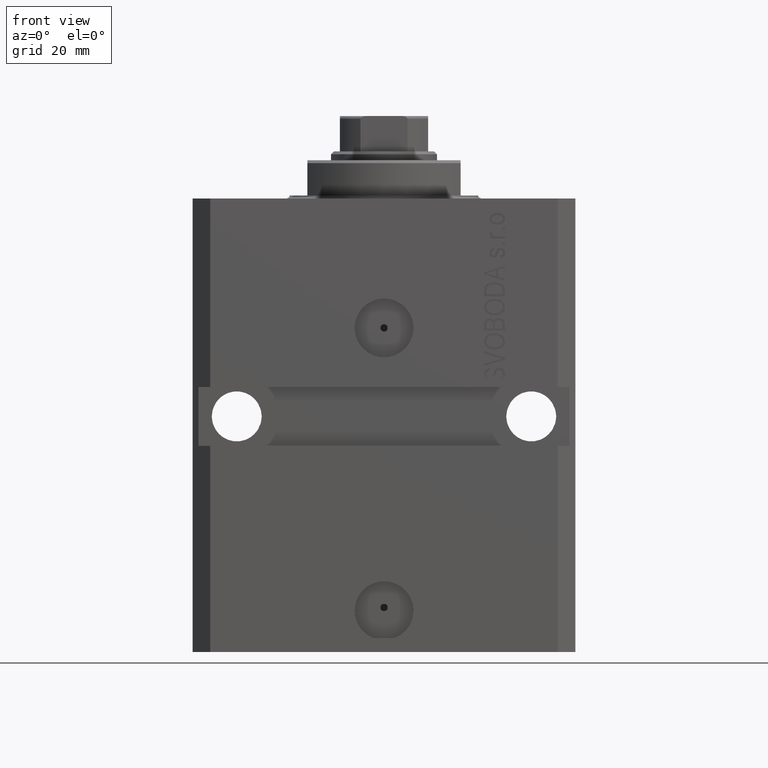
[diagram: clean part render]
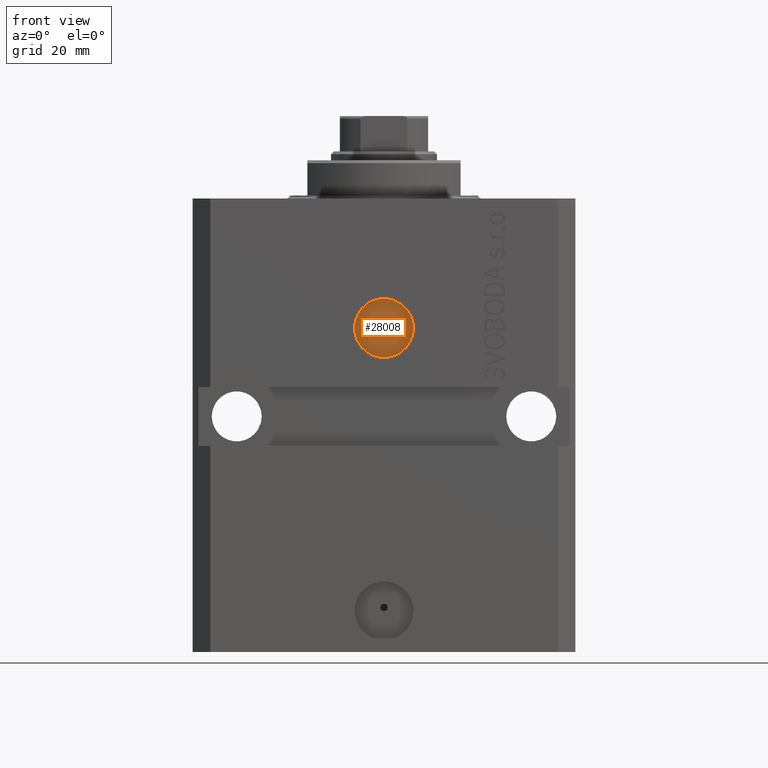
[diagram: same view with one face highlighted and labeled with its STEP entity id]
A machine part, front view. The second image highlights one B-rep face of the part: STEP entity #28008.
In plain terms, the highlighted planar face has unit normal (0, -1, 0).
Its self-contained STEP definition (entity closure, byte-faithful):
#2407 = CARTESIAN_POINT ( 'NONE',  ( 5.000000000000005329, -20.59999999999949694, -22.00000000000000000 ) ) ;
#3118 = CARTESIAN_POINT ( 'NONE',  ( 2.422732447805124080E-15, -20.59999999999949694, -22.00000000000000000 ) ) ;
#3271 = CIRCLE ( 'NONE', #17808, 5.000000000000002665 ) ;
#3811 = EDGE_LOOP ( 'NONE', ( #25388, #28164 ) ) ;
#4474 = VERTEX_POINT ( 'NONE', #19564 ) ;
#4702 = CARTESIAN_POINT ( 'NONE',  ( 2.422732447805124080E-15, -20.59999999999949694, -22.00000000000000000 ) ) ;
#7088 = DIRECTION ( 'NONE',  ( 1.000000000000000000, 1.176083712526788232E-16, 0.000000000000000000 ) ) ;
#7331 = FACE_BOUND ( 'NONE', #3811, .T. ) ;
#8726 = EDGE_LOOP ( 'NONE', ( #37330, #22894 ) ) ;
#8812 = CIRCLE ( 'NONE', #41928, 0.6250000000000002220 ) ;
#11511 = CARTESIAN_POINT ( 'NONE',  ( -0.6249999999999978906, -20.59999999999949694, -22.00000000000000000 ) ) ;
#16302 = VERTEX_POINT ( 'NONE', #41748 ) ;
#17808 = AXIS2_PLACEMENT_3D ( 'NONE', #3118, #18086, #43648 ) ;
#17864 = DIRECTION ( 'NONE',  ( 1.176083712526788232E-16, -1.000000000000000000, 0.000000000000000000 ) ) ;
#18086 = DIRECTION ( 'NONE',  ( 1.176083712526788232E-16, -1.000000000000000000, 0.000000000000000000 ) ) ;
#19564 = CARTESIAN_POINT ( 'NONE',  ( 0.6250000000000026645, -20.59999999999949694, -22.00000000000000000 ) ) ;
#20309 = VERTEX_POINT ( 'NONE', #2407 ) ;
#20983 = AXIS2_PLACEMENT_3D ( 'NONE', #25806, #17864, #43663 ) ;
#22052 = CARTESIAN_POINT ( 'NONE',  ( 2.422732447805124080E-15, -20.59999999999949694, -22.00000000000000000 ) ) ;
#22593 = DIRECTION ( 'NONE',  ( 1.000000000000000000, 0.000000000000000000, 0.000000000000000000 ) ) ;
#22894 = ORIENTED_EDGE ( 'NONE', *, *, #38348, .T. ) ;
#25388 = ORIENTED_EDGE ( 'NONE', *, *, #33059, .F. ) ;
#25417 = PLANE ( 'NONE',  #45013 ) ;
#25806 = CARTESIAN_POINT ( 'NONE',  ( 2.422732447805124080E-15, -20.59999999999949694, -22.00000000000000000 ) ) ;
#26885 = DIRECTION ( 'NONE',  ( 1.000000000000000000, 0.000000000000000000, 0.000000000000000000 ) ) ;
#27092 = AXIS2_PLACEMENT_3D ( 'NONE', #4702, #41833, #26885 ) ;
#27908 = CIRCLE ( 'NONE', #20983, 5.000000000000002665 ) ;
#28008 = ADVANCED_FACE ( 'NONE', ( #7331, #29257 ), #25417, .T. ) ;
#28164 = ORIENTED_EDGE ( 'NONE', *, *, #43574, .F. ) ;
#29257 = FACE_OUTER_BOUND ( 'NONE', #8726, .T. ) ;
#29309 = CARTESIAN_POINT ( 'NONE',  ( 2.422732447805124080E-15, -20.59999999999949694, -22.00000000000000000 ) ) ;
#33059 = EDGE_CURVE ( 'NONE', #4474, #45466, #45600, .T. ) ;
#35346 = EDGE_CURVE ( 'NONE', #20309, #16302, #3271, .T. ) ;
#37027 = DIRECTION ( 'NONE',  ( 1.176083712526788232E-16, -1.000000000000000000, 0.000000000000000000 ) ) ;
#37330 = ORIENTED_EDGE ( 'NONE', *, *, #35346, .T. ) ;
#38348 = EDGE_CURVE ( 'NONE', #16302, #20309, #27908, .T. ) ;
#40111 = DIRECTION ( 'NONE',  ( 1.176083712526788232E-16, -1.000000000000000000, 0.000000000000000000 ) ) ;
#41748 = CARTESIAN_POINT ( 'NONE',  ( -5.000000000000000000, -20.59999999999949694, -22.00000000000000000 ) ) ;
#41833 = DIRECTION ( 'NONE',  ( 1.176083712526788232E-16, -1.000000000000000000, 0.000000000000000000 ) ) ;
#41928 = AXIS2_PLACEMENT_3D ( 'NONE', #29309, #37027, #22593 ) ;
#43574 = EDGE_CURVE ( 'NONE', #45466, #4474, #8812, .T. ) ;
#43648 = DIRECTION ( 'NONE',  ( 1.000000000000000000, 0.000000000000000000, 0.000000000000000000 ) ) ;
#43663 = DIRECTION ( 'NONE',  ( 1.000000000000000000, 0.000000000000000000, 0.000000000000000000 ) ) ;
#45013 = AXIS2_PLACEMENT_3D ( 'NONE', #22052, #40111, #7088 ) ;
#45466 = VERTEX_POINT ( 'NONE', #11511 ) ;
#45600 = CIRCLE ( 'NONE', #27092, 0.6250000000000002220 ) ;